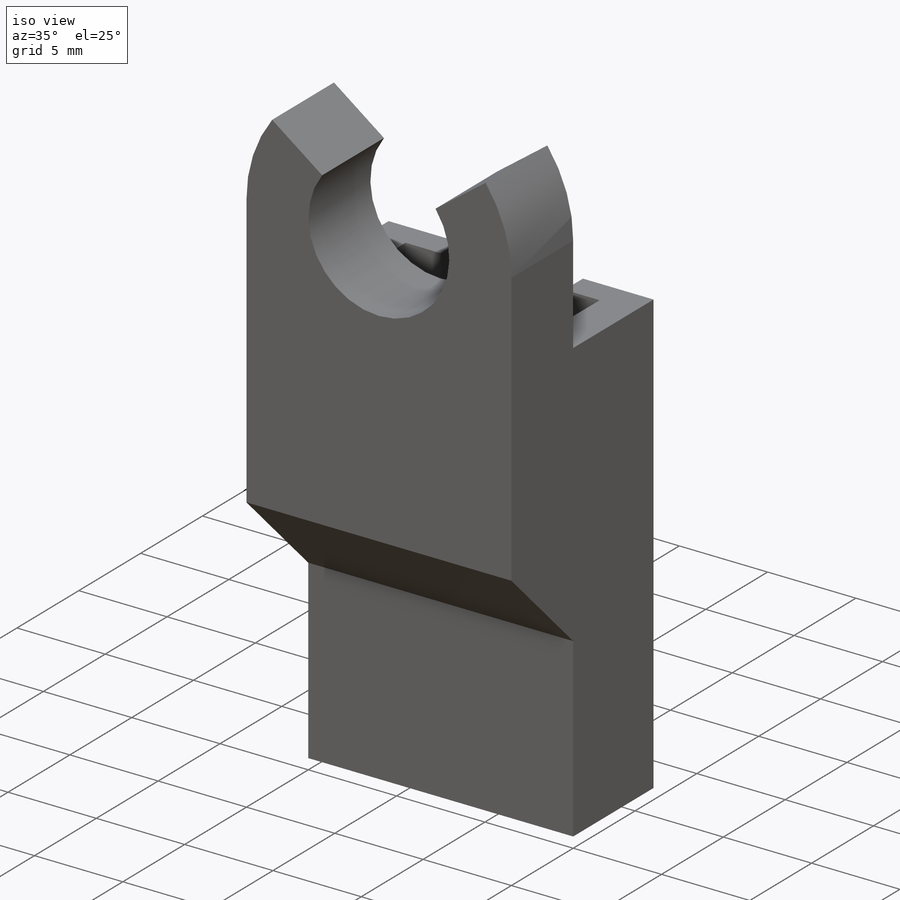
[diagram: iso view]
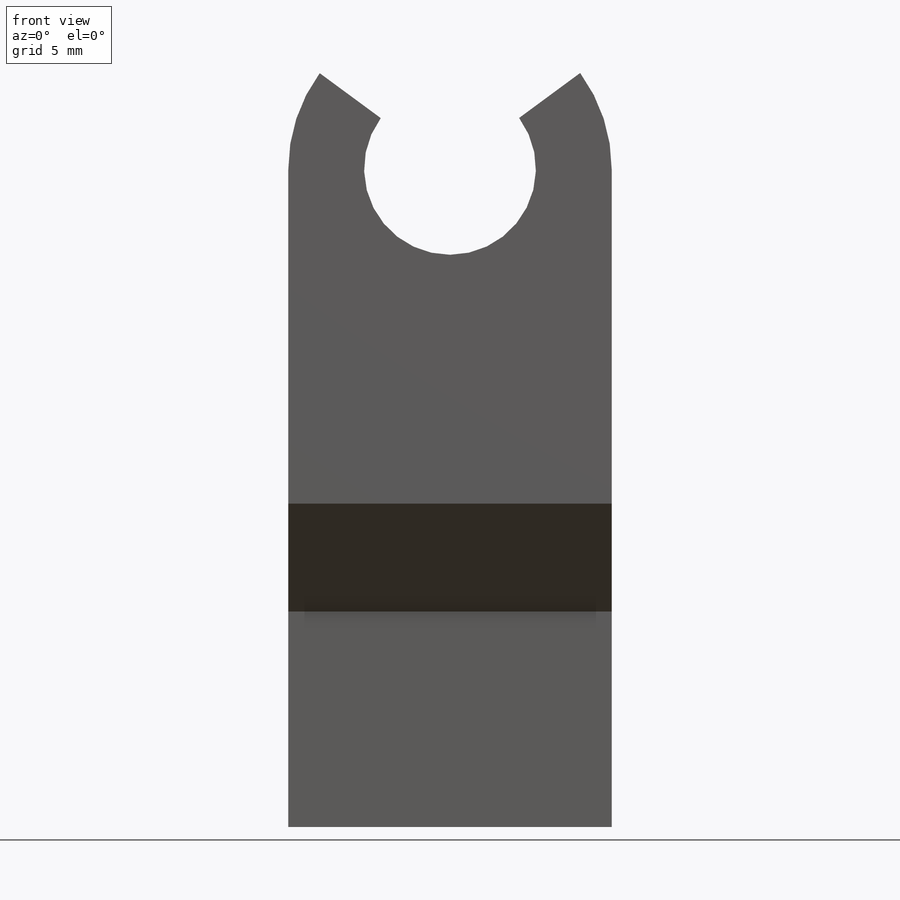
[diagram: front view]
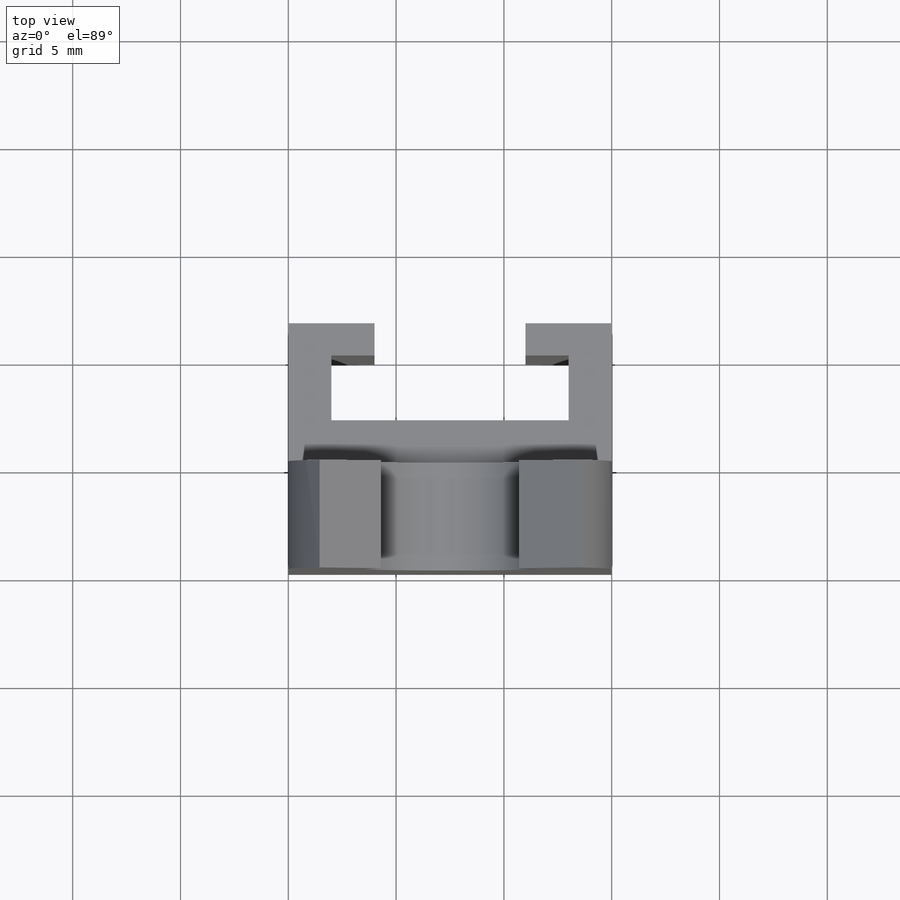
[diagram: top view]
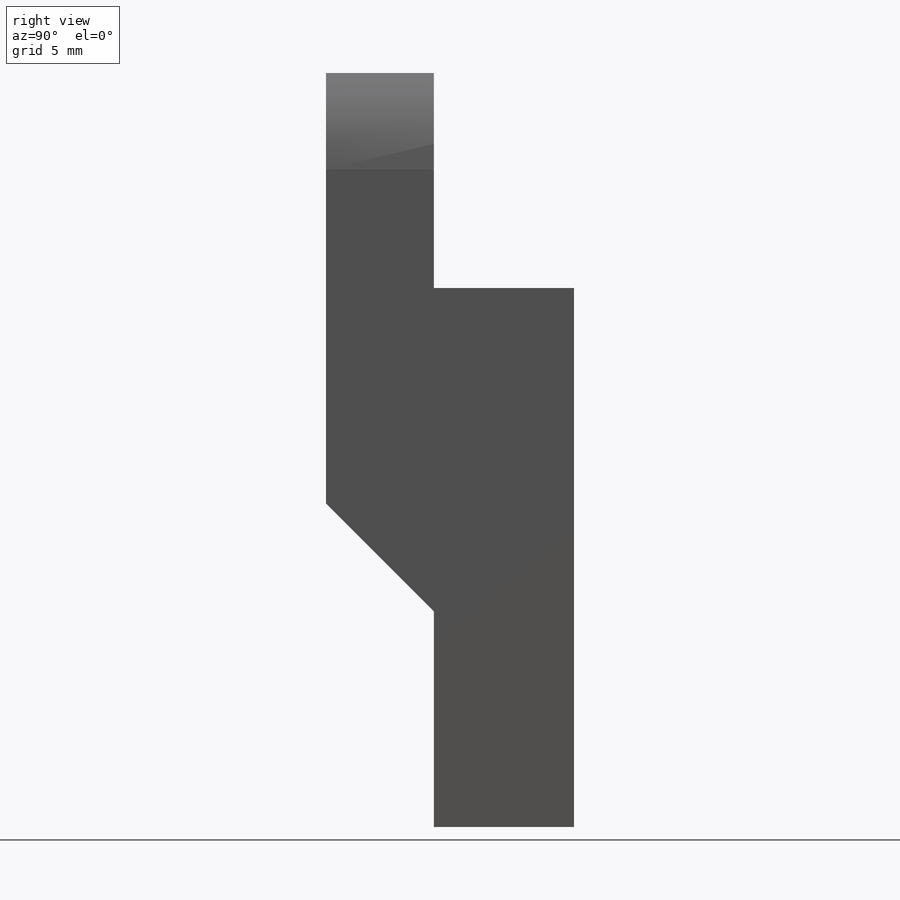
[diagram: right view]
SOLIDWORKS PART (.sldprt)
format: sldprt  version: not decoded by parser v0  size: 177,664 bytes
history: native  units: mm
features: sketch x4, extrude x3, material x1 (+13 scaffold rows collapsed)
feature tree (21):
  scaffold x13  (default folders/planes/origin — collapsed)
  material  "Material <not specified>"
  sketch  "Sketch1"  dims[D1=11.0mm D2=3.0mm D3=2.0mm D4=3.0mm D5=2.0mm D6=1.5mm D7=1.5mm D8=2.0mm D9=2.0mm D10=2.0mm]
  extrude  "Boss-Extrude2"  Depth=25mm
  sketch  "Sketch2"  dims[c1.D1=8.0mm c1.D2=8.0mm c1.D3=18.0mm c2.D2=10.0mm]
  sketch  "Sketch3"  dims[c1.D1=8.0mm c1.D2=5.5mm c2.D1=10.0mm]
  extrude  "Boss-Extrude4"  Depth=5mm
  sketch  "Sketch4"
  extrude  "Boss-Extrude5"  [1 undecoded]
decode coverage: 5 of 7 modeling features carry decoded parameters
note: 1 parameter value undecoded
note: suppression state not decoded; provenance and decode notes live in map.json
